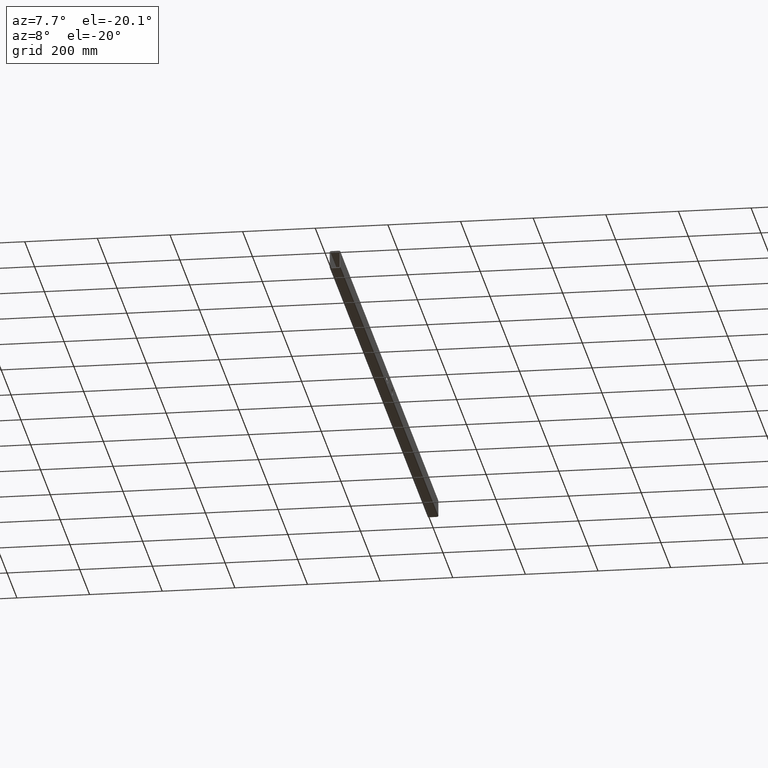
[diagram: clean part render]
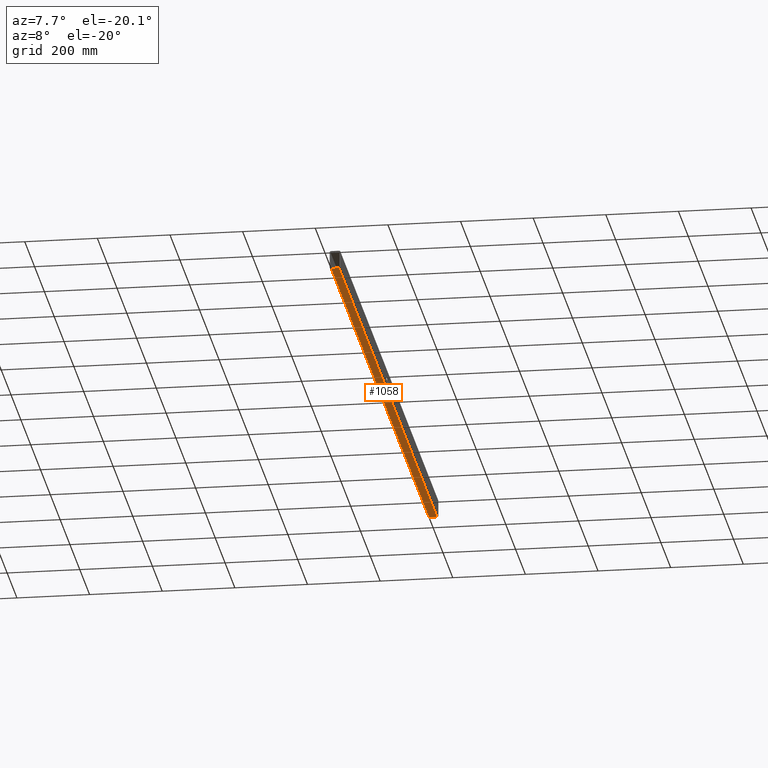
[diagram: same view with one face highlighted and labeled with its STEP entity id]
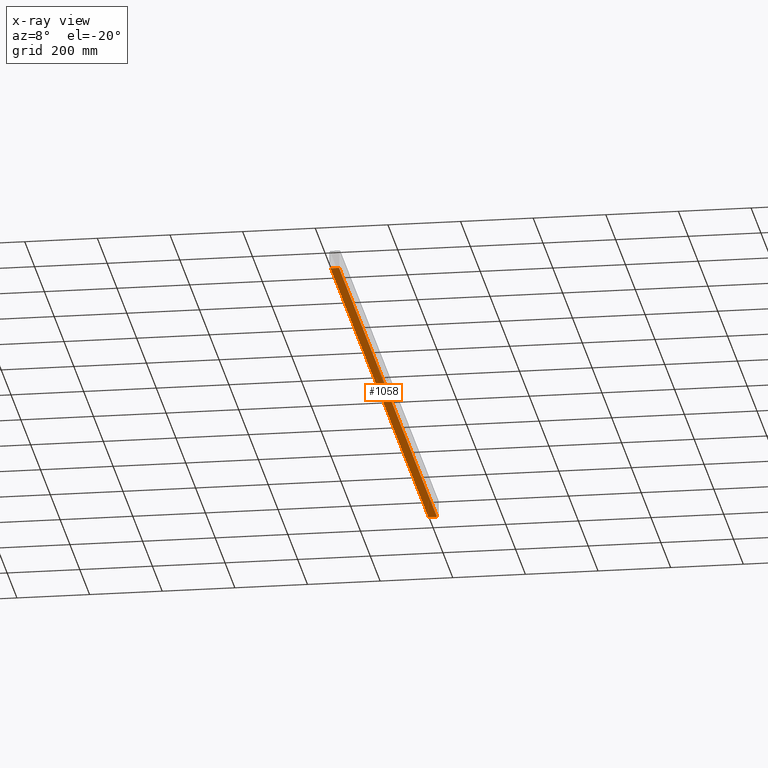
[diagram: x-ray of the same camera — body ghosted, the highlighted face saturated]
A machine part, auxiliary view. The second image highlights one B-rep face of the part: STEP entity #1058.
The next image is the same camera in x-ray: the body ghosted, the highlighted face saturated — about 0% of this face is hidden behind the body in this view.
In plain terms, the highlighted planar face has unit normal (0, 0, 1).
Its self-contained STEP definition (entity closure, byte-faithful):
#477 = EDGE_CURVE ( 'NONE', #10928, #1304, #4913, .T. ) ;
#813 = VECTOR ( 'NONE', #11237, 1000.000000000000000 ) ;
#1058 = ADVANCED_FACE ( 'NONE', ( #6314 ), #4070, .F. ) ;
#1304 = VERTEX_POINT ( 'NONE', #3639 ) ;
#1314 = ORIENTED_EDGE ( 'NONE', *, *, #8213, .F. ) ;
#1463 = CARTESIAN_POINT ( 'NONE',  ( -11.00000000000000355, -997.5000000000000000, -25.00000000000000711 ) ) ;
#2232 = EDGE_CURVE ( 'NONE', #7109, #10928, #8280, .T. ) ;
#2419 = CARTESIAN_POINT ( 'NONE',  ( -11.00000000000000355, 997.5000000000000000, -25.00000000000000711 ) ) ;
#3036 = VECTOR ( 'NONE', #11319, 1000.000000000000000 ) ;
#3151 = CARTESIAN_POINT ( 'NONE',  ( -11.00000000000000355, 997.5000000000000000, -25.00000000000000711 ) ) ;
#3639 = CARTESIAN_POINT ( 'NONE',  ( -11.00000000000000355, -997.5000000000000000, -25.00000000000000711 ) ) ;
#4061 = DIRECTION ( 'NONE',  ( -0.000000000000000000, -1.000000000000000000, -0.000000000000000000 ) ) ;
#4070 = PLANE ( 'NONE',  #12222 ) ;
#4913 = LINE ( 'NONE', #1463, #3036 ) ;
#5361 = VERTEX_POINT ( 'NONE', #7825 ) ;
#5422 = CARTESIAN_POINT ( 'NONE',  ( -11.00000000000000355, 997.5000000000000000, -25.00000000000000711 ) ) ;
#5506 = VECTOR ( 'NONE', #4061, 1000.000000000000000 ) ;
#5654 = EDGE_CURVE ( 'NONE', #7109, #5361, #7355, .T. ) ;
#5993 = VECTOR ( 'NONE', #7854, 1000.000000000000000 ) ;
#6314 = FACE_OUTER_BOUND ( 'NONE', #11503, .T. ) ;
#7109 = VERTEX_POINT ( 'NONE', #7380 ) ;
#7355 = LINE ( 'NONE', #2419, #813 ) ;
#7380 = CARTESIAN_POINT ( 'NONE',  ( 10.99999999999999467, 997.5000000000000000, -25.00000000000000711 ) ) ;
#7403 = ORIENTED_EDGE ( 'NONE', *, *, #5654, .F. ) ;
#7825 = CARTESIAN_POINT ( 'NONE',  ( -11.00000000000000355, 997.5000000000000000, -25.00000000000000711 ) ) ;
#7854 = DIRECTION ( 'NONE',  ( -0.000000000000000000, -1.000000000000000000, -0.000000000000000000 ) ) ;
#8213 = EDGE_CURVE ( 'NONE', #5361, #1304, #10737, .T. ) ;
#8280 = LINE ( 'NONE', #10750, #5993 ) ;
#8995 = DIRECTION ( 'NONE',  ( 1.000000000000000000, 0.000000000000000000, -0.000000000000000000 ) ) ;
#9626 = DIRECTION ( 'NONE',  ( 0.000000000000000000, 0.000000000000000000, 1.000000000000000000 ) ) ;
#10198 = CARTESIAN_POINT ( 'NONE',  ( 10.99999999999999467, -997.5000000000000000, -25.00000000000000711 ) ) ;
#10737 = LINE ( 'NONE', #3151, #5506 ) ;
#10750 = CARTESIAN_POINT ( 'NONE',  ( 10.99999999999999467, 997.5000000000000000, -25.00000000000000711 ) ) ;
#10928 = VERTEX_POINT ( 'NONE', #10198 ) ;
#11237 = DIRECTION ( 'NONE',  ( -1.000000000000000000, -0.000000000000000000, -0.000000000000000000 ) ) ;
#11319 = DIRECTION ( 'NONE',  ( -1.000000000000000000, -0.000000000000000000, -0.000000000000000000 ) ) ;
#11503 = EDGE_LOOP ( 'NONE', ( #11689, #1314, #7403, #11505 ) ) ;
#11505 = ORIENTED_EDGE ( 'NONE', *, *, #2232, .T. ) ;
#11689 = ORIENTED_EDGE ( 'NONE', *, *, #477, .T. ) ;
#12222 = AXIS2_PLACEMENT_3D ( 'NONE', #5422, #9626, #8995 ) ;